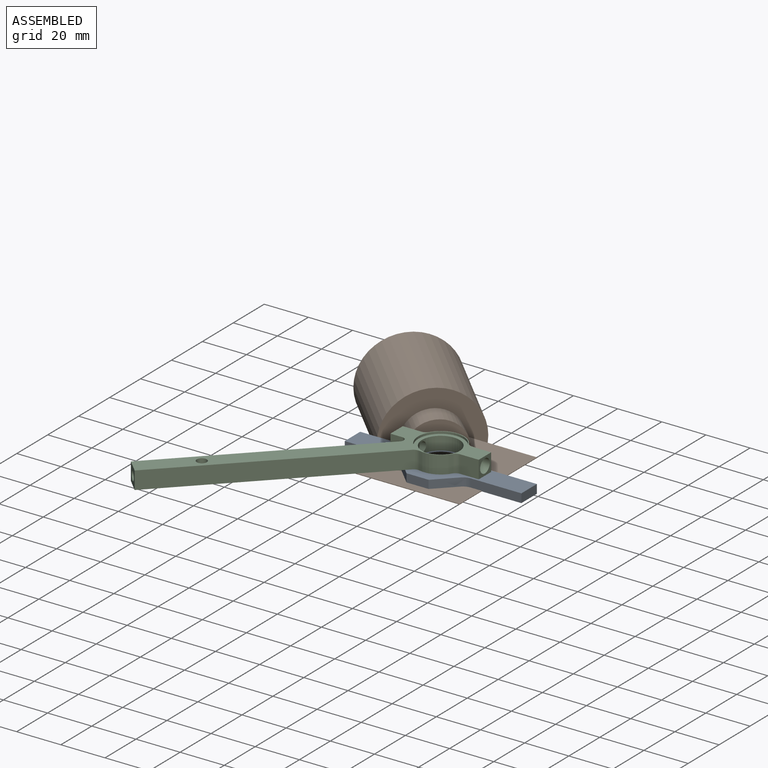
[diagram: assembled view]
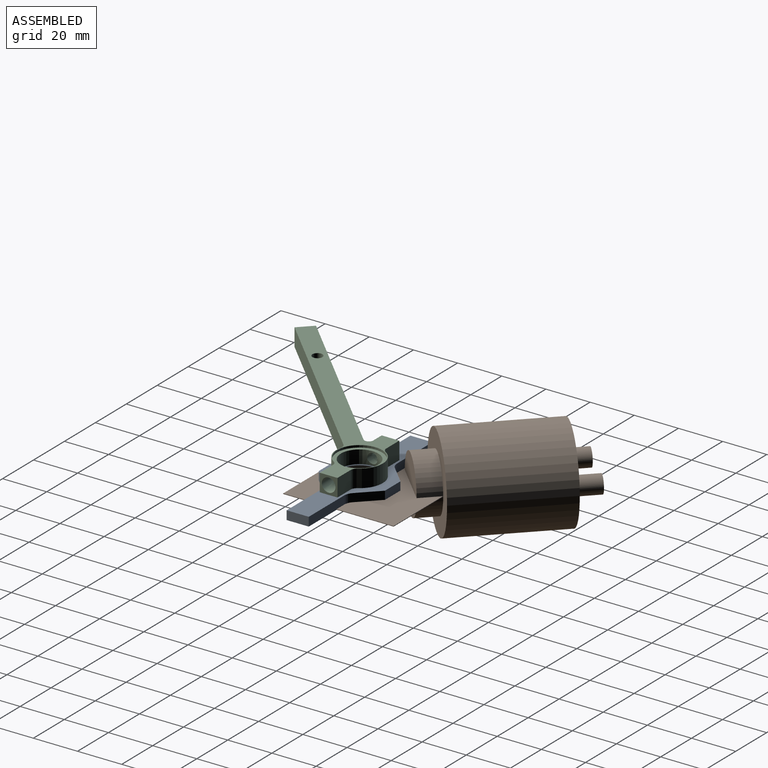
[diagram: assembled view, second angle]
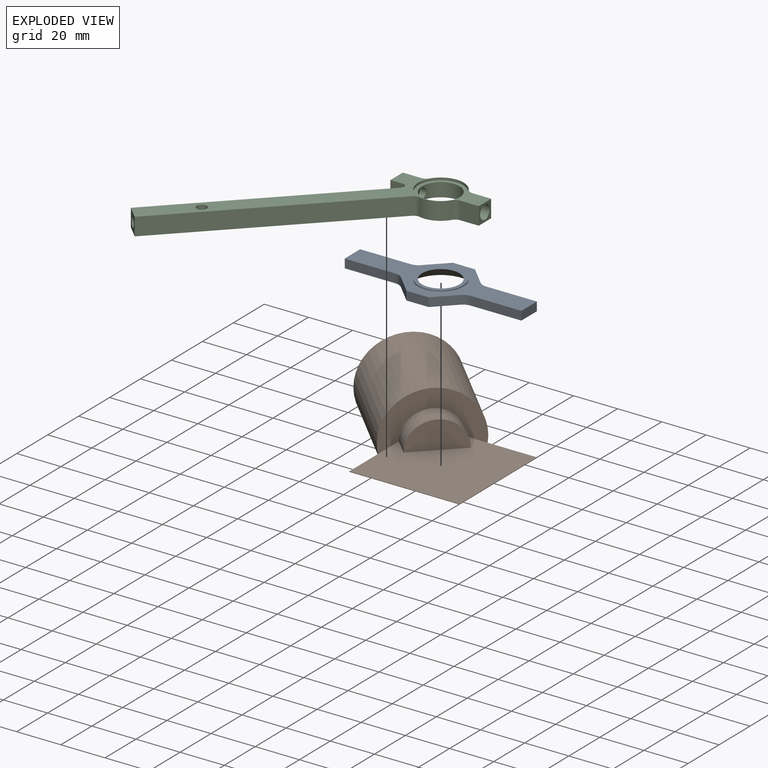
[diagram: exploded view]
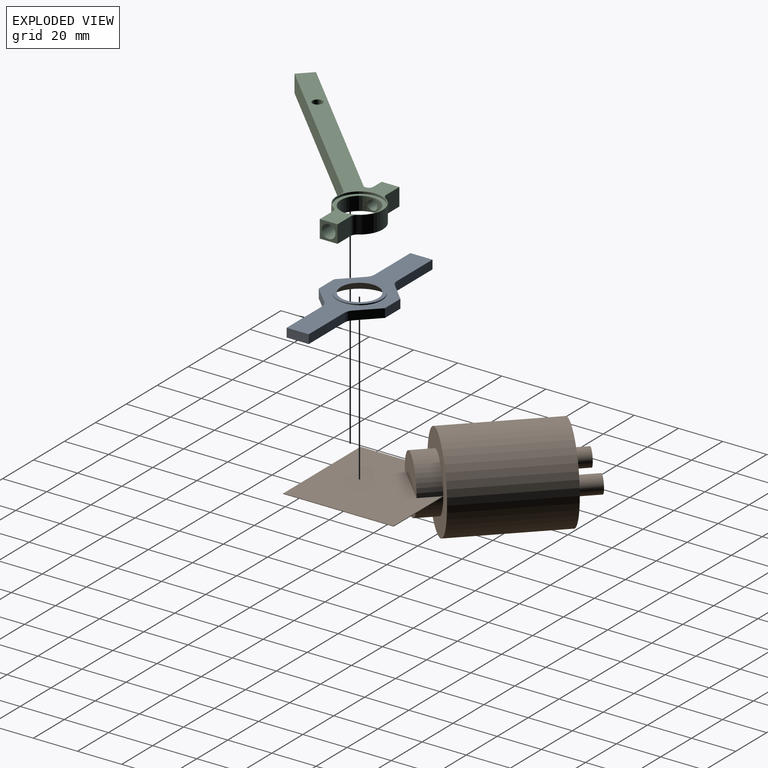
[diagram: exploded view, second angle]
ASSEMBLY  parts=3 mates=2
PART A: 21 faces, bbox 80x30x4.5 mm
  f0: plane 8.54x8.54mm, normal (-0.71,0.71,0), area 48.3mm2, adj f11,f12,f13,f18
  f1: plane 22.93x4mm, normal (0,1,0), area 91.7mm2, adj f2,f12,f13,f18
  f2: plane 10x4mm, normal (-1,0,0), area 40mm2, adj f1,f3,f12,f13
  f3: plane 22.93x4mm, normal (0,-1,0), area 91.7mm2, adj f2,f12,f13,f19
  f4: plane 8.54x8.54mm, normal (-0.71,-0.71,0), area 48.3mm2, adj f5,f12,f13,f19
  f5: plane 10x4mm, normal (0,-1,0), area 40mm2, adj f4,f6,f12,f13
  f6: plane 8.54x8.54mm, normal (0.71,-0.71,0), area 48.3mm2, adj f5,f12,f13,f20
  f7: plane 22.93x4mm, normal (0,-1,0), area 91.7mm2, adj f8,f12,f13,f20
  f8: plane 10x4mm, normal (1,0,0), area 40mm2, adj f7,f9,f12,f13
  f9: plane 22.93x4mm, normal (0,1,0), area 91.7mm2, adj f8,f12,f13,f17
  f10: plane 8.54x8.54mm, normal (0.71,0.71,0), area 48.3mm2, adj f11,f12,f13,f17
  f11: plane 10x4mm, normal (0,1,0), area 40mm2, adj f0,f10,f12,f13
  f12: plane 80x30mm, normal (0,0,1), area 878.5mm2, adj f0,f1,f2,f3,f4,f5,f6,f7
  f13: plane 80x30mm, normal (0,0,-1), area 671.2mm2, adj f0,f1,f2,f3,f4,f5,f6,f7
  f14: cylinder r=10.15mm len=20.3mm, axis (0,0,-1), area 31.9mm2, adj f12,f15
  f15: plane 20.3x20.3mm, normal (0,0,1), area 96.7mm2, adj f14,f16
  f16: cone r=13mm half-angle=45deg, axis (0,0,-1), area 429.8mm2, adj f13,f15
  f17: cylinder r=5mm len=4mm, axis (0,0,1), area 15.7mm2, adj f9,f10,f12,f13
  f18: cylinder r=5mm len=4mm, axis (0,0,-1), area 15.7mm2, adj f0,f1,f12,f13
  f19: cylinder r=5mm len=4mm, axis (0,0,-1), area 15.7mm2, adj f3,f4,f12,f13
  f20: cylinder r=5mm len=4mm, axis (0,0,1), area 15.7mm2, adj f6,f7,f12,f13
PART B: 17 faces, bbox 70.7x42x118 mm
  f0: plane 35.36x35.36mm, normal (0.71,0,0.71), area 12.5mm2, adj f1,f3,f4,f5
  f1: plane 35.36x35.36mm, normal (-0.71,0,0.71), area 12.5mm2, adj f0,f2,f4,f5
  f2: plane 22.66x22.66mm, normal (-0.71,0,-0.71), area 8mm2, adj f1,f4,f5,f12
  f3: plane 22.66x22.66mm, normal (0.71,0,-0.71), area 8mm2, adj f0,f4,f5,f12
  f4: plane 70.71x58.01mm, normal (0,-1,0), area 2084.7mm2, adj f0,f1,f2,f3,f8,f9,f12
  f5: plane 70.71x58.01mm, normal (0,1,0), area 2084.7mm2, adj f0,f1,f2,f3,f6,f7,f12
  f6: plane 25.4x12.58mm, normal (0,0,1), area 250.2mm2, adj f5,f7
  f7: cylinder r=12.7mm len=25.4mm, axis (0,0,-1), area 396.5mm2, adj f5,f6,f12
  f8: cylinder r=12.7mm len=25.4mm, axis (0,0,-1), area 396.5mm2, adj f4,f9,f12
  f9: plane 25.4x12.58mm, normal (0,0,1), area 250.2mm2, adj f4,f8
  f10: cylinder r=21mm len=50mm, axis (0,0,1), area 6597.3mm2, adj f11,f12
  f11: plane 42x42mm, normal (0,0,-1), area 1284.9mm2, adj f10,f13,f15
  f12: plane 42x42mm, normal (0,0,1), area 878.7mm2, adj f2,f3,f4,f5,f7,f8,f10
  f13: cylinder r=4mm len=10mm, axis (0,0,1), area 251.3mm2, adj f11,f14
  f14: plane 8x8mm, normal (0,0,-1), area 50.3mm2, adj f13
  f15: cylinder r=4mm len=10mm, axis (0,0,1), area 251.3mm2, adj f11,f16
  f16: plane 8x8mm, normal (0,0,-1), area 50.3mm2, adj f15
PART C: 32 faces, bbox 133x33.9x8 mm
  f0: cylinder r=2.29mm len=5.58mm, axis (0.71,-0.71,0), area 45.5mm2, adj f2,f28
  f1: cylinder r=2.29mm len=5.58mm, axis (0.71,-0.71,0), area 45.5mm2, adj f2,f26
  f2: cylinder r=8.5mm len=17mm, axis (0,0,-1), area 287.3mm2, adj f0,f1,f4,f5
  f3: cylinder r=10.5mm len=13mm, axis (0,0,-1), area 172.3mm2, adj f9,f10,f20,f21
  f4: plane 20.4x20.4mm, normal (0,0,1), area 99.9mm2, adj f2,f7
  f5: plane 20.4x20.4mm, normal (0,0,-1), area 99.9mm2, adj f2,f6
  f6: cylinder r=10.2mm len=20.4mm, axis (0,0,-1), area 64.1mm2, adj f5,f10
  f7: cylinder r=10.2mm len=20.4mm, axis (0,0,-1), area 64.1mm2, adj f4,f9
  f8: cylinder r=10.5mm len=11.45mm, axis (0,0,-1), area 106mm2, adj f9,f10,f22,f31
  f9: plane 132.97x33.94mm, normal (0,0,1), area 1023.5mm2, adj f3,f7,f8,f11,f12,f13,f14,f15
  f10: plane 132.97x33.94mm, normal (0,0,-1), area 1023.5mm2, adj f3,f6,f8,f11,f12,f13,f14,f15
  f11: plane 8.1x8mm, normal (1,0,0), area 50.9mm2, adj f9,f10,f12,f13,f24
  f12: plane 101.46x8mm, normal (0,-1,0), area 811.7mm2, adj f9,f10,f11,f30
  f13: plane 104.49x8mm, normal (0,1,0), area 835.9mm2, adj f9,f10,f11,f31
  f14: plane 8x5.66mm, normal (0.71,-0.71,0), area 33.8mm2, adj f9,f10,f15,f16,f27
  f15: plane 8x3.85mm, normal (0.71,0.71,0), area 43.6mm2, adj f9,f10,f14,f30
  f16: plane 8x5.98mm, normal (-0.71,-0.71,0), area 67.7mm2, adj f9,f10,f14,f21
  f17: plane 8x5.98mm, normal (-0.71,-0.71,0), area 67.7mm2, adj f9,f10,f19,f20
  f18: plane 8x5.98mm, normal (0.71,0.71,0), area 67.7mm2, adj f9,f10,f19,f22
  f19: plane 8x5.66mm, normal (-0.71,0.71,0), area 33.8mm2, adj f9,f10,f17,f18,f29
  f20: cylinder r=3mm len=8mm, axis (0,0,-1), area 24.6mm2, adj f3,f9,f10,f17
  f21: cylinder r=3mm len=8mm, axis (0,0,-1), area 24.6mm2, adj f3,f9,f10,f16
  f22: cylinder r=3mm len=8mm, axis (0,0,-1), area 24.6mm2, adj f8,f9,f10,f18
  f23: cone r=0mm half-angle=59deg, axis (1,0,0), area 16.2mm2, adj f24
  f24: cylinder r=2.1mm len=16mm, axis (1,0,0), area 211.1mm2, adj f11,f23
  f25: cylinder r=2.25mm len=8mm, axis (0,0,1), area 113.1mm2, adj f9,f10
  f26: cone r=0mm half-angle=59deg, axis (0.71,-0.71,0), area 16.1mm2, adj f1,f27
  f27: cylinder r=3.1mm len=10.04mm, axis (0.71,-0.71,0), area 155.8mm2, adj f14,f26
  f28: cone r=0mm half-angle=59deg, axis (-0.71,0.71,0), area 16.1mm2, adj f0,f29
  f29: cylinder r=3.1mm len=10.04mm, axis (-0.71,0.71,0), area 155.8mm2, adj f19,f28
  f30: cylinder r=2mm len=8mm, axis (0,0,-1), area 37.7mm2, adj f9,f10,f12,f15
  f31: cylinder r=3mm len=8mm, axis (0,0,-1), area 24.5mm2, adj f8,f9,f10,f13
PLACE A t=(46.05,19.92,-12.25)mm fixed
PLACE B rot(axis=(0.86,0.36,0.36),98.4deg) t=(43.06,25.74,-12.12)mm
PLACE C rot(axis=(0,0,-1),135deg) t=(46.05,19.92,-4.25)mm
MATE fastened B.f4 <-> A.f16  axis (0,0,-1) through (46.05,19.92,-12.25)mm
MATE fastened C.f6 <-> A.f14  axis (0,0,-1) through (46.05,19.92,-8.25)mm
